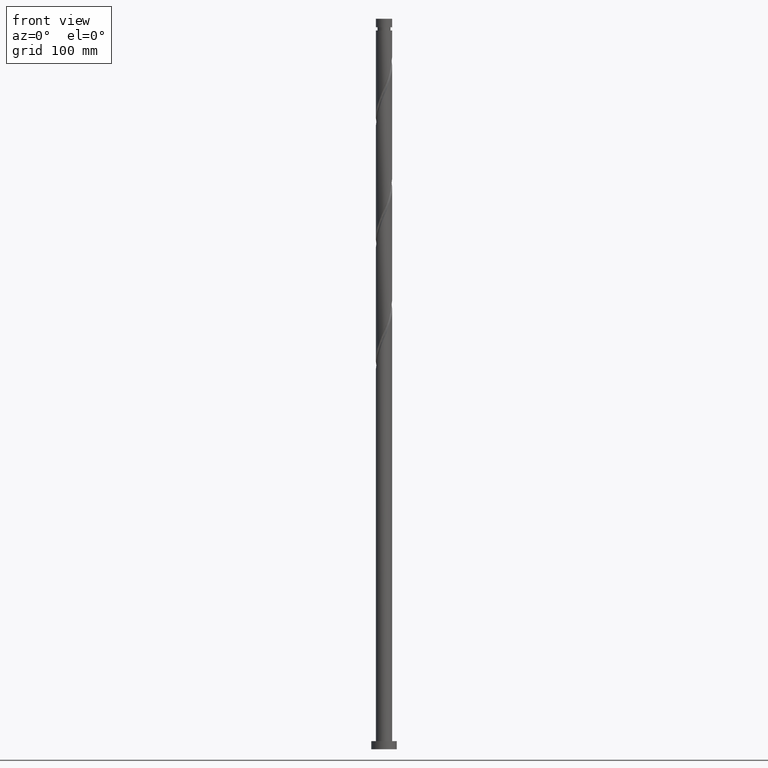
[diagram: clean part render]
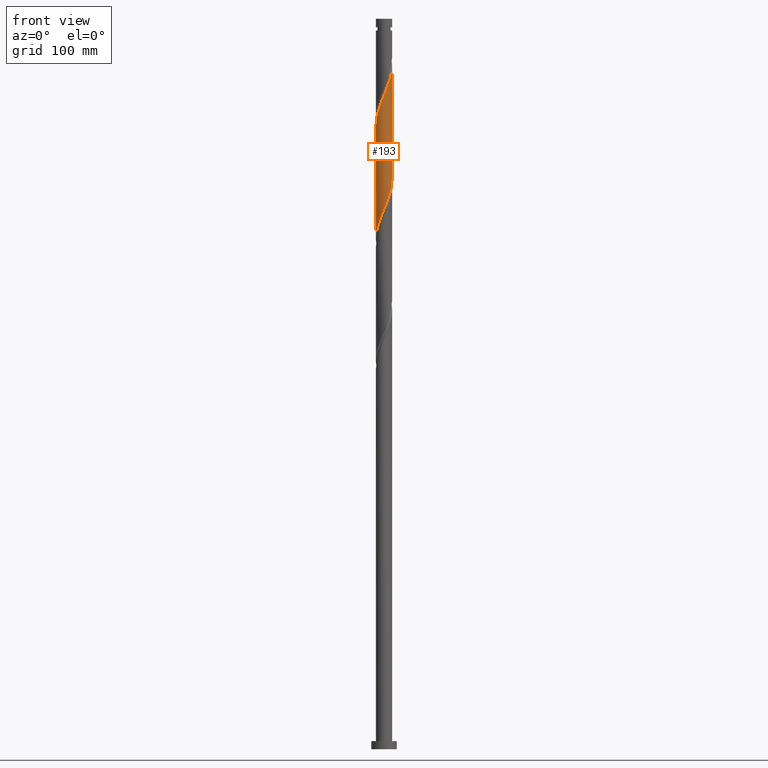
[diagram: same view with one face highlighted and labeled with its STEP entity id]
A machine part, front view. The second image highlights one B-rep face of the part: STEP entity #193.
In plain terms, the highlighted cylindrical surface (edge-blend (fillet) strip) has radius 7 mm, axis along (-0, -0, -1).
Its self-contained STEP definition (entity closure, byte-faithful):
#9 = CARTESIAN_POINT ( 'NONE',  ( 3.592125691453326830, -6.008047354740224222, 474.7051571055448562 ) ) ;
#20 = CARTESIAN_POINT ( 'NONE',  ( 6.216916180193678088, -3.217134316196027743, 483.9698629878977272 ) ) ;
#34 = CARTESIAN_POINT ( 'NONE',  ( 2.629785931500610019, -6.487235617308932056, 570.4404512231917579 ) ) ;
#43 = CARTESIAN_POINT ( 'NONE',  ( 6.979331644137407586, -0.5375219075929553725, 588.9698629878977272 ) ) ;
#66 = CARTESIAN_POINT ( 'NONE',  ( -1.818576125090525242, -6.790693771085499542, 559.6316276937801604 ) ) ;
#103 = DIRECTION ( 'NONE',  ( -0.000000000000000000, -0.000000000000000000, -1.000000000000000000 ) ) ;
#168 = CARTESIAN_POINT ( 'NONE',  ( 1.818576125090520801, -6.790693771085493324, 470.0728041643683355 ) ) ;
#177 = CARTESIAN_POINT ( 'NONE',  ( 6.702208247472145608, -2.020001140474033452, 487.0580982820155782 ) ) ;
#193 = ADVANCED_FACE ( 'NONE', ( #1520 ), #1537, .T. ) ;
#211 = CARTESIAN_POINT ( 'NONE',  ( -5.121024193531053648, -4.816207244780721375, 550.3669218114273463 ) ) ;
#235 = ORIENTED_EDGE ( 'NONE', *, *, #1741, .T. ) ;
#249 = CARTESIAN_POINT ( 'NONE',  ( -5.918804784004604969, -3.793216437833846211, 547.2786865173096658 ) ) ;
#268 = LINE ( 'NONE', #812, #1928 ) ;
#297 = EDGE_LOOP ( 'NONE', ( #1978, #875, #235, #1650 ) ) ;
#334 =( BOUNDED_CURVE ( )  B_SPLINE_CURVE ( 2, ( #1682, #2181, #502, #1710, #177, #2190, #20, #1000, #1548, #702, #1043, #681, #9, #1024, #1692, #168, #836, #856, #1363, #1179, #1539, #692, #847, #2046, #1720, #2028, #1521, #1560, #1349, #1887, #533, #1372, #2018, #494, #1190, #523, #876 ),
 .UNSPECIFIED., .F., .T. ) 
 B_SPLINE_CURVE_WITH_KNOTS ( ( 3, 2, 2, 2, 2, 2, 2, 2, 2, 2, 2, 2, 2, 2, 2, 2, 2, 2, 3 ),
 ( 0.5545293573162903833, 0.5588235294117647189, 0.5661764705882352811, 0.5735294117647058432, 0.5808823529411765163, 0.5882352941176470784, 0.5955882352941176405, 0.6029411764705882026, 0.6102941176470588758, 0.6176470588235294379, 0.6250000000000000000, 0.6323529411764705621, 0.6397058823529411242, 0.6470588235294117974, 0.6544117647058823595, 0.6617647058823529216, 0.6691176470588234837, 0.6764705882352941568, 0.6795293573162901613 ),
 .UNSPECIFIED. ) 
 CURVE ( )  GEOMETRIC_REPRESENTATION_ITEM ( )  RATIONAL_B_SPLINE_CURVE ( ( 0.9072066346053073715, 0.9068261157890743496, 0.9090909090909458090, 0.9052128875409768405, 0.9090909090909458090, 0.9052128875409768405, 0.9090909090909458090, 0.9052128875409768405, 0.9090909090909458090, 0.9052128875409768405, 0.9090909090909458090, 0.9052128875409768405, 0.9090909090909458090, 0.9052128875409768405, 0.9090909090909458090, 0.9052128875409768405, 0.9090909090909458090, 0.9052128875409768405, 0.9090909090909458090, 0.9052128875409768405, 0.9090909090909458090, 0.9052128875409768405, 0.9090909090909458090, 0.9052128875409768405, 0.9090909090909458090, 0.9052128875409768405, 0.9090909090909458090, 0.9052128875409768405, 0.9090909090909458090, 0.9052128875409768405, 0.9090909090909458090, 0.9052128875409768405, 0.9090909090909458090, 0.9052128875409768405, 0.9090909090909458090, 0.9074776808428484109, 0.9072066346053074826 ) ) 
 REPRESENTATION_ITEM ( '' )  );
#336 = VECTOR ( 'NONE', #421, 1000.000000000000000 ) ;
#377 = CARTESIAN_POINT ( 'NONE',  ( -6.515027576382769858, -2.641052194558210164, 544.1904512231918716 ) ) ;
#397 = CARTESIAN_POINT ( 'NONE',  ( 1.392982411949275079, -6.860000000000008313, 567.3522159290743048 ) ) ;
#407 = CARTESIAN_POINT ( 'NONE',  ( 7.000000000000009770, -0.2691583152137944634, 589.6106014023204125 ) ) ;
#421 = DIRECTION ( 'NONE',  ( -0.000000000000000000, -0.000000000000000000, -1.000000000000000000 ) ) ;
#494 = CARTESIAN_POINT ( 'NONE',  ( -6.929522904244866943, -1.184252226071104364, 442.2786865173095521 ) ) ;
#502 = CARTESIAN_POINT ( 'NONE',  ( 6.959264651295729465, -0.7540792486375333947, 490.1463335761332019 ) ) ;
#523 = CARTESIAN_POINT ( 'NONE',  ( -6.999999999999999112, -0.2691583152138035673, 440.0938304558280834 ) ) ;
#533 = CARTESIAN_POINT ( 'NONE',  ( -6.313857628450196380, -3.022449643527797214, 446.9110394584860728 ) ) ;
#556 = CARTESIAN_POINT ( 'NONE',  ( 0.1087425470572634945, -6.999155310354216120, 564.2639806349566243 ) ) ;
#566 = CARTESIAN_POINT ( 'NONE',  ( -6.959264651295736570, -0.7540792486375301751, 539.5580982820155214 ) ) ;
#578 = CARTESIAN_POINT ( 'NONE',  ( 6.313857628450199933, -3.022449643527802987, 582.7933923996624799 ) ) ;
#591 = CARTESIAN_POINT ( 'NONE',  ( 6.593928833002410173, -2.437384573822554579, 584.3375100467211496 ) ) ;
#681 = CARTESIAN_POINT ( 'NONE',  ( 4.148853266138338824, -5.675187890410485103, 476.2492747526037533 ) ) ;
#692 = CARTESIAN_POINT ( 'NONE',  ( -2.028655025169598947, -6.730921170557767397, 460.8080982820154077 ) ) ;
#702 = CARTESIAN_POINT ( 'NONE',  ( 5.121024193531048319, -4.816207244780717822, 479.3375100467213770 ) ) ;
#710 = CARTESIAN_POINT ( 'NONE',  ( 4.323153652638920263, -5.543562348443774823, 575.0728041643684492 ) ) ;
#730 = CARTESIAN_POINT ( 'NONE',  ( -6.889388918561536457, -1.398950086389860736, 541.1022159290743048 ) ) ;
#739 = CARTESIAN_POINT ( 'NONE',  ( -3.592125691453332603, -6.008047354740226886, 554.9992747526034691 ) ) ;
#751 = CARTESIAN_POINT ( 'NONE',  ( -4.148853266138343265, -5.675187890410491320, 553.4551571055449131 ) ) ;
#799 = VERTEX_POINT ( 'NONE', #1935 ) ;
#809 = VERTEX_POINT ( 'NONE', #1622 ) ;
#812 = CARTESIAN_POINT ( 'NONE',  ( -7.000000000000000888, 0.000000000000000000, 630.0000000000000000 ) ) ;
#836 = CARTESIAN_POINT ( 'NONE',  ( 1.179200414852472845, -6.899962781175836390, 468.5286865173096089 ) ) ;
#847 = CARTESIAN_POINT ( 'NONE',  ( -2.629785931500610019, -6.487235617308924951, 459.2639806349566811 ) ) ;
#856 = CARTESIAN_POINT ( 'NONE',  ( 0.5398247046144222239, -7.009231791266180345, 466.9845688702508824 ) ) ;
#875 = ORIENTED_EDGE ( 'NONE', *, *, #2045, .F. ) ;
#876 = CARTESIAN_POINT ( 'NONE',  ( -7.000000000000004441, -1.308633924825886615E-14, 439.4504247037683626 ) ) ;
#899 = CARTESIAN_POINT ( 'NONE',  ( 4.795662153747907830, -5.099178807132584978, 576.6169218114273463 ) ) ;
#908 = CARTESIAN_POINT ( 'NONE',  ( -7.000000000000009770, -2.001791620167441878E-15, 537.7540071543801332 ) ) ;
#1000 = CARTESIAN_POINT ( 'NONE',  ( 5.918804784004598751, -3.793216437833843102, 482.4257453408390006 ) ) ;
#1015 =( BOUNDED_CURVE ( )  B_SPLINE_CURVE ( 2, ( #908, #1244, #566, #730, #1097, #377, #1074, #249, #1742, #211, #1392, #751, #739, #1441, #2070, #66, #1732, #1428, #556, #2091, #397, #1417, #34, #1571, #1751, #710, #899, #1583, #2056, #2106, #578, #591, #1235, #1930, #43, #407, #1267 ),
 .UNSPECIFIED., .F., .T. ) 
 B_SPLINE_CURVE_WITH_KNOTS ( ( 3, 2, 2, 2, 2, 2, 2, 2, 2, 2, 2, 2, 2, 2, 2, 2, 2, 2, 3 ),
 ( 0.5545293573162898282, 0.5588235294117647189, 0.5661764705882352811, 0.5735294117647058432, 0.5808823529411764053, 0.5882352941176470784, 0.5955882352941176405, 0.6029411764705883137, 0.6102941176470588758, 0.6176470588235294379, 0.6250000000000000000, 0.6323529411764705621, 0.6397058823529411242, 0.6470588235294116863, 0.6544117647058823595, 0.6617647058823529216, 0.6691176470588235947, 0.6764705882352941568, 0.6795293573162902723 ),
 .UNSPECIFIED. ) 
 CURVE ( )  GEOMETRIC_REPRESENTATION_ITEM ( )  RATIONAL_B_SPLINE_CURVE ( ( 0.9072066346053118124, 0.9068261157890784574, 0.9090909090909501389, 0.9052128875409812814, 0.9090909090909501389, 0.9052128875409812814, 0.9090909090909501389, 0.9052128875409812814, 0.9090909090909501389, 0.9052128875409812814, 0.9090909090909501389, 0.9052128875409812814, 0.9090909090909501389, 0.9052128875409812814, 0.9090909090909501389, 0.9052128875409812814, 0.9090909090909501389, 0.9052128875409812814, 0.9090909090909501389, 0.9052128875409812814, 0.9090909090909501389, 0.9052128875409812814, 0.9090909090909501389, 0.9052128875409812814, 0.9090909090909501389, 0.9052128875409812814, 0.9090909090909501389, 0.9052128875409812814, 0.9090909090909501389, 0.9052128875409812814, 0.9090909090909501389, 0.9052128875409812814, 0.9090909090909501389, 0.9052128875409812814, 0.9090909090909501389, 0.9074776808428526298, 0.9072066346053117014 ) ) 
 REPRESENTATION_ITEM ( '' )  );
#1024 = CARTESIAN_POINT ( 'NONE',  ( 3.035398116768314392, -6.340906819069961564, 473.1610394584860728 ) ) ;
#1043 = CARTESIAN_POINT ( 'NONE',  ( 4.634938729834693127, -5.245697567595601463, 477.7933923996625367 ) ) ;
#1074 = CARTESIAN_POINT ( 'NONE',  ( -6.216916180193686969, -3.217134316196028632, 545.7345688702507687 ) ) ;
#1097 = CARTESIAN_POINT ( 'NONE',  ( -6.702208247472152713, -2.020001140474035228, 542.6463335761332019 ) ) ;
#1179 = CARTESIAN_POINT ( 'NONE',  ( -0.7573097987289505451, -6.989078829442237684, 463.8963335761331450 ) ) ;
#1190 = CARTESIAN_POINT ( 'NONE',  ( -6.979331644137400481, -0.5375219075929524859, 440.7345688702507118 ) ) ;
#1235 = CARTESIAN_POINT ( 'NONE',  ( 6.761725868623641666, -1.810818399946827251, 585.8816276937801604 ) ) ;
#1244 = CARTESIAN_POINT ( 'NONE',  ( -7.000000000000016875, -0.3781398857547966230, 538.6579263863928873 ) ) ;
#1267 = CARTESIAN_POINT ( 'NONE',  ( 7.000000000000009770, 2.509708896926345588E-15, 590.2540071543801332 ) ) ;
#1326 = CARTESIAN_POINT ( 'NONE',  ( -7.000000000000009770, -2.001791620167441878E-15, 537.7540071543801332 ) ) ;
#1349 = CARTESIAN_POINT ( 'NONE',  ( -5.650978539377440768, -4.131154989527220600, 449.9992747526036965 ) ) ;
#1353 = VERTEX_POINT ( 'NONE', #1420 ) ;
#1363 = CARTESIAN_POINT ( 'NONE',  ( -0.1087425470572657982, -6.999155310354209902, 465.4404512231919853 ) ) ;
#1372 = CARTESIAN_POINT ( 'NONE',  ( -6.593928833002403067, -2.437384573822550582, 445.3669218114272894 ) ) ;
#1392 = CARTESIAN_POINT ( 'NONE',  ( -4.634938729834698457, -5.245697567595605015, 551.9110394584862433 ) ) ;
#1417 = CARTESIAN_POINT ( 'NONE',  ( 2.028655025169602499, -6.730921170557770949, 568.8963335761330882 ) ) ;
#1420 = CARTESIAN_POINT ( 'NONE',  ( 7.000000000000009770, 2.509708896926345194E-15, 590.2540071543801332 ) ) ;
#1428 = CARTESIAN_POINT ( 'NONE',  ( -0.5398247046144251104, -7.009231791266188338, 562.7198629878977272 ) ) ;
#1441 = CARTESIAN_POINT ( 'NONE',  ( -3.035398116768320609, -6.340906819069967781, 556.5433923996627072 ) ) ;
#1510 = DIRECTION ( 'NONE',  ( -0.000000000000000000, -0.000000000000000000, -1.000000000000000000 ) ) ;
#1520 = FACE_OUTER_BOUND ( 'NONE', #297, .T. ) ;
#1521 = CARTESIAN_POINT ( 'NONE',  ( -4.795662153747901613, -5.099178807132581426, 453.0875100467213770 ) ) ;
#1537 = CYLINDRICAL_SURFACE ( 'NONE', #2060, 7.000000000000000888 ) ;
#1539 = CARTESIAN_POINT ( 'NONE',  ( -1.392982411949276189, -6.860000000000002096, 462.3522159290741342 ) ) ;
#1548 = CARTESIAN_POINT ( 'NONE',  ( 5.519914488767822647, -4.304711841307277354, 480.8816276937801604 ) ) ;
#1555 = EDGE_CURVE ( 'NONE', #1353, #809, #1902, .T. ) ;
#1560 = CARTESIAN_POINT ( 'NONE',  ( -5.268170654856891844, -4.654795265821396910, 451.5433923996624230 ) ) ;
#1571 = CARTESIAN_POINT ( 'NONE',  ( 3.230916837831621979, -6.243550064060094940, 571.9845688702507687 ) ) ;
#1583 = CARTESIAN_POINT ( 'NONE',  ( 5.268170654856896284, -4.654795265821401351, 578.1610394584860160 ) ) ;
#1622 = CARTESIAN_POINT ( 'NONE',  ( 7.000000000000000888, -6.752312032206627651E-15, 491.9504247037683626 ) ) ;
#1650 = ORIENTED_EDGE ( 'NONE', *, *, #1991, .F. ) ;
#1673 = CARTESIAN_POINT ( 'NONE',  ( 0.000000000000000000, 0.000000000000000000, 630.0000000000000000 ) ) ;
#1682 = CARTESIAN_POINT ( 'NONE',  ( 7.000000000000000888, -6.752312032206627651E-15, 491.9504247037683626 ) ) ;
#1692 = CARTESIAN_POINT ( 'NONE',  ( 2.426987120929419373, -6.565800295077725224, 471.6169218114272326 ) ) ;
#1699 = DIRECTION ( 'NONE',  ( -1.000000000000000000, 0.000000000000000000, 0.000000000000000000 ) ) ;
#1710 = CARTESIAN_POINT ( 'NONE',  ( 6.889388918561528463, -1.398950086389862291, 488.6022159290743048 ) ) ;
#1720 = CARTESIAN_POINT ( 'NONE',  ( -3.777035245235266459, -5.893556206251926000, 456.1757453408389438 ) ) ;
#1732 = CARTESIAN_POINT ( 'NONE',  ( -1.179200414852473733, -6.899962781175843496, 561.1757453408388301 ) ) ;
#1741 = EDGE_CURVE ( 'NONE', #1865, #799, #268, .T. ) ;
#1742 = CARTESIAN_POINT ( 'NONE',  ( -5.519914488767829752, -4.304711841307283571, 548.8228041643683355 ) ) ;
#1751 = CARTESIAN_POINT ( 'NONE',  ( 3.777035245235271788, -5.893556206251933105, 573.5286865173096658 ) ) ;
#1865 = VERTEX_POINT ( 'NONE', #1326 ) ;
#1887 = CARTESIAN_POINT ( 'NONE',  ( -6.033786423897987916, -3.607514713233048287, 448.4551571055448562 ) ) ;
#1902 = LINE ( 'NONE', #1922, #336 ) ;
#1922 = CARTESIAN_POINT ( 'NONE',  ( 7.000000000000000888, 8.572527594031474176E-16, 630.0000000000000000 ) ) ;
#1928 = VECTOR ( 'NONE', #103, 1000.000000000000000 ) ;
#1930 = CARTESIAN_POINT ( 'NONE',  ( 6.929522904244873160, -1.184252226071106584, 587.4257453408391711 ) ) ;
#1935 = CARTESIAN_POINT ( 'NONE',  ( -7.000000000000004441, -1.308633924825886615E-14, 439.4504247037684195 ) ) ;
#1978 = ORIENTED_EDGE ( 'NONE', *, *, #1555, .F. ) ;
#1991 = EDGE_CURVE ( 'NONE', #809, #799, #334, .T. ) ;
#2018 = CARTESIAN_POINT ( 'NONE',  ( -6.761725868623634561, -1.810818399946825474, 443.8228041643683923 ) ) ;
#2028 = CARTESIAN_POINT ( 'NONE',  ( -4.323153652638915823, -5.543562348443766830, 454.6316276937800467 ) ) ;
#2045 = EDGE_CURVE ( 'NONE', #1865, #1353, #1015, .T. ) ;
#2046 = CARTESIAN_POINT ( 'NONE',  ( -3.230916837831621091, -6.243550064060084281, 457.7198629878978409 ) ) ;
#2056 = CARTESIAN_POINT ( 'NONE',  ( 5.650978539377444321, -4.131154989527225929, 579.7051571055447994 ) ) ;
#2060 = AXIS2_PLACEMENT_3D ( 'NONE', #1673, #1510, #1699 ) ;
#2070 = CARTESIAN_POINT ( 'NONE',  ( -2.426987120929422481, -6.565800295077733217, 558.0875100467213770 ) ) ;
#2091 = CARTESIAN_POINT ( 'NONE',  ( 0.7573097987289522104, -6.989078829442246565, 565.8080982820155214 ) ) ;
#2106 = CARTESIAN_POINT ( 'NONE',  ( 6.033786423897991469, -3.607514713233052728, 581.2492747526038102 ) ) ;
#2181 = CARTESIAN_POINT ( 'NONE',  ( 7.000000000000002665, -0.3781398857548463055, 491.0465054717556086 ) ) ;
#2190 = CARTESIAN_POINT ( 'NONE',  ( 6.515027576382764529, -2.641052194558206168, 485.5139806349566243 ) ) ;